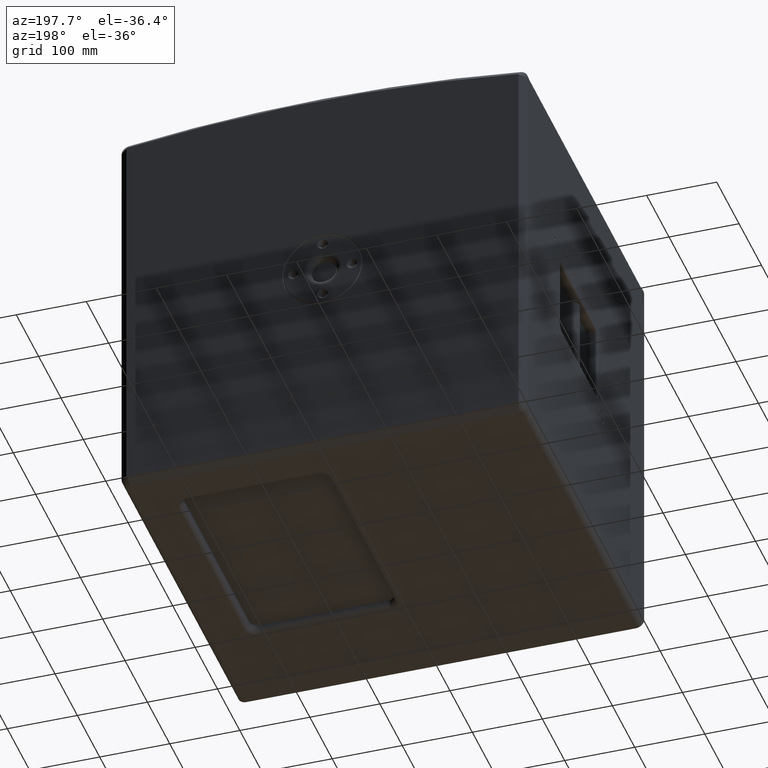
[diagram: clean part render]
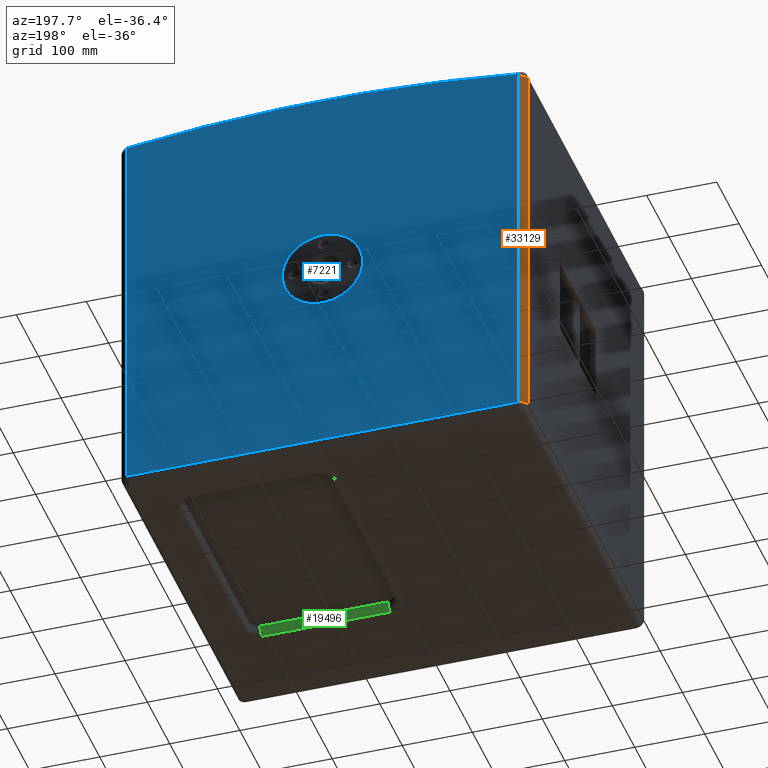
[diagram: same view with three faces highlighted in distinct colors, each labeled with its STEP entity id]
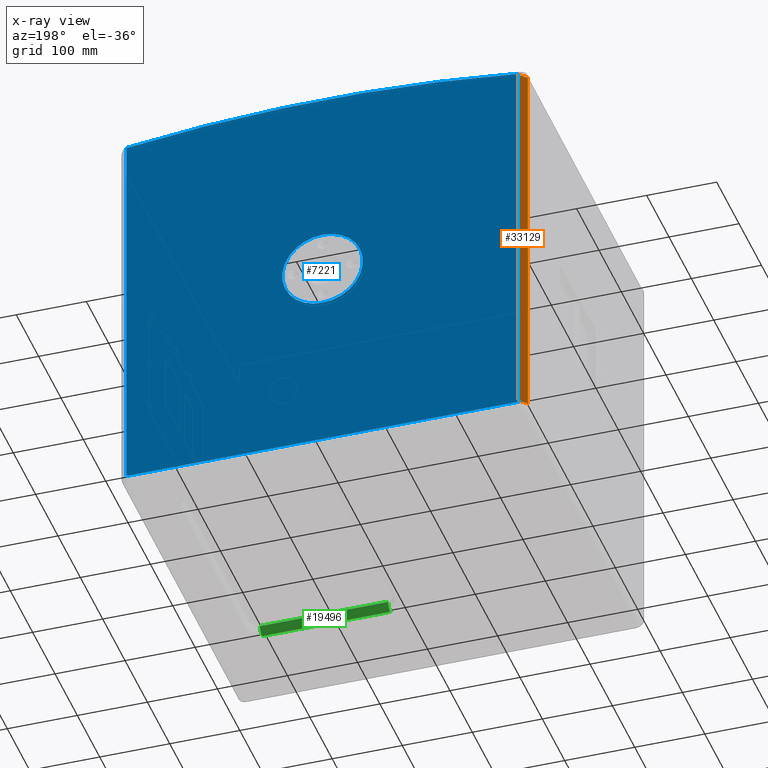
[diagram: x-ray of the same camera — body ghosted, the three highlighted faces saturated]
A machine part, auxiliary view with three faces highlighted in distinct colors.
The next image is the same camera in x-ray (body ghosted, the three faces saturated) — at least one of them is partly hidden behind the body in this view.
Their STEP definitions:

[orange] entity #33129 — the highlighted planar face has unit normal (0.7071, -0.7071, 0).
#368 = DIRECTION ( 'NONE',  ( 0.7071067811865495711, -0.7071067811865455743, 0.0000000000000000000 ) ) ;
#1529 = VERTEX_POINT ( 'NONE', #2086 ) ;
#2086 = CARTESIAN_POINT ( 'NONE',  ( -290.0000000000000000, 260.0000000000001137, 264.9646601001412023 ) ) ;
#2307 = ORIENTED_EDGE ( 'NONE', *, *, #12323, .F. ) ;
#2890 = ORIENTED_EDGE ( 'NONE', *, *, #34410, .F. ) ;
#4826 = DIRECTION ( 'NONE',  ( 0.0000000000000000000, 0.0000000000000000000, -1.000000000000000000 ) ) ;
#5221 = CARTESIAN_POINT ( 'NONE',  ( -280.0000000000001137, 270.0000000000000000, 297.5000000000000568 ) ) ;
#5461 = LINE ( 'NONE', #24528, #11710 ) ;
#5777 = LINE ( 'NONE', #18674, #21183 ) ;
#5852 = DIRECTION ( 'NONE',  ( 0.0000000000000000000, 0.0000000000000000000, 1.000000000000000000 ) ) ;
#5937 = VERTEX_POINT ( 'NONE', #29729 ) ;
#9651 = VERTEX_POINT ( 'NONE', #31165 ) ;
#9914 = FACE_OUTER_BOUND ( 'NONE', #34334, .T. ) ;
#9998 = VECTOR ( 'NONE', #5852, 1000.000000000000000 ) ;
#11710 = VECTOR ( 'NONE', #4826, 1000.000000000000000 ) ;
#11930 = DIRECTION ( 'NONE',  ( 0.7071067811865514585, 0.7071067811865435759, 0.0000000000000000000 ) ) ;
#12323 = EDGE_CURVE ( 'NONE', #9651, #5937, #13853, .T. ) ;
#13853 = LINE ( 'NONE', #20596, #29370 ) ;
#17438 = DIRECTION ( 'NONE',  ( 0.7071067811865455743, 0.7071067811865495711, 0.0000000000000000000 ) ) ;
#17463 = EDGE_CURVE ( 'NONE', #1529, #9651, #5461, .T. ) ;
#18674 = CARTESIAN_POINT ( 'NONE',  ( -289.9999999999999432, 260.0000000000002274, 264.9646601001412023 ) ) ;
#20244 = PLANE ( 'NONE',  #40561 ) ;
#20596 = CARTESIAN_POINT ( 'NONE',  ( -290.0000000000000000, 260.0000000000001137, -285.4999999999999432 ) ) ;
#21056 = LINE ( 'NONE', #5221, #9998 ) ;
#21183 = VECTOR ( 'NONE', #11930, 1000.000000000000000 ) ;
#23479 = DIRECTION ( 'NONE',  ( 0.0000000000000000000, 0.0000000000000000000, -1.000000000000000000 ) ) ;
#24528 = CARTESIAN_POINT ( 'NONE',  ( -290.0000000000000000, 260.0000000000001137, 297.5000000000000568 ) ) ;
#29370 = VECTOR ( 'NONE', #17438, 1000.000000000000114 ) ;
#29401 = CARTESIAN_POINT ( 'NONE',  ( -290.0000000000000000, 260.0000000000001137, 297.5000000000000568 ) ) ;
#29729 = CARTESIAN_POINT ( 'NONE',  ( -280.0000000000000568, 270.0000000000000000, -285.4999999999999432 ) ) ;
#31165 = CARTESIAN_POINT ( 'NONE',  ( -290.0000000000000000, 260.0000000000001137, -285.4999999999999432 ) ) ;
#33129 = ADVANCED_FACE ( 'NONE', ( #9914 ), #20244, .F. ) ;
#34222 = VERTEX_POINT ( 'NONE', #37327 ) ;
#34334 = EDGE_LOOP ( 'NONE', ( #36476, #2890, #2307, #35015 ) ) ;
#34410 = EDGE_CURVE ( 'NONE', #5937, #34222, #21056, .T. ) ;
#35015 = ORIENTED_EDGE ( 'NONE', *, *, #17463, .F. ) ;
#36476 = ORIENTED_EDGE ( 'NONE', *, *, #38411, .T. ) ;
#37327 = CARTESIAN_POINT ( 'NONE',  ( -280.0000000000001137, 270.0000000000000000, 264.9646601001412023 ) ) ;
#38411 = EDGE_CURVE ( 'NONE', #1529, #34222, #5777, .T. ) ;
#40561 = AXIS2_PLACEMENT_3D ( 'NONE', #29401, #368, #23479 ) ;

[blue] entity #7221 — the highlighted planar face has unit normal (0, -1, 0).
#396 = EDGE_CURVE ( 'NONE', #23469, #31254, #1039, .T. ) ;
#1039 = CIRCLE ( 'NONE', #30148, 57.50000000000000000 ) ;
#1063 = CARTESIAN_POINT ( 'NONE',  ( -277.9999999999999432, 270.0000000000000000, -287.5000000000000568 ) ) ;
#1485 = AXIS2_PLACEMENT_3D ( 'NONE', #21327, #18372, #31553 ) ;
#1579 = ORIENTED_EDGE ( 'NONE', *, *, #33606, .T. ) ;
#1696 = ORIENTED_EDGE ( 'NONE', *, *, #22549, .T. ) ;
#2448 = LINE ( 'NONE', #32256, #12137 ) ;
#2848 = VERTEX_POINT ( 'NONE', #36785 ) ;
#2894 = AXIS2_PLACEMENT_3D ( 'NONE', #8121, #5363, #4732 ) ;
#3872 = CARTESIAN_POINT ( 'NONE',  ( 277.9999999999998863, 270.0000000000000000, -287.5000000000000568 ) ) ;
#4698 = VERTEX_POINT ( 'NONE', #3872 ) ;
#4732 = DIRECTION ( 'NONE',  ( 0.0000000000000000000, 0.0000000000000000000, -1.000000000000000000 ) ) ;
#5035 = VECTOR ( 'NONE', #27881, 1000.000000000000000 ) ;
#5221 = CARTESIAN_POINT ( 'NONE',  ( -280.0000000000001137, 270.0000000000000000, 297.5000000000000568 ) ) ;
#5363 = DIRECTION ( 'NONE',  ( -0.0000000000000000000, 1.000000000000000000, -0.0000000000000000000 ) ) ;
#5802 = CARTESIAN_POINT ( 'NONE',  ( 7.041719095097280485E-15, 270.0000000000000000, -57.50000000000000000 ) ) ;
#5852 = DIRECTION ( 'NONE',  ( 0.0000000000000000000, 0.0000000000000000000, 1.000000000000000000 ) ) ;
#5937 = VERTEX_POINT ( 'NONE', #29729 ) ;
#6265 = EDGE_CURVE ( 'NONE', #31254, #23469, #8064, .T. ) ;
#6439 = DIRECTION ( 'NONE',  ( 0.0000000000000000000, -1.000000000000000000, 0.0000000000000000000 ) ) ;
#6559 = ORIENTED_EDGE ( 'NONE', *, *, #40883, .T. ) ;
#6984 = DIRECTION ( 'NONE',  ( 0.0000000000000000000, 1.000000000000000000, 0.0000000000000000000 ) ) ;
#7059 = VERTEX_POINT ( 'NONE', #15447 ) ;
#7221 = ADVANCED_FACE ( 'NONE', ( #13192, #25510 ), #16342, .F. ) ;
#7317 = DIRECTION ( 'NONE',  ( 0.0000000000000000000, 0.0000000000000000000, -1.000000000000000000 ) ) ;
#7493 = CARTESIAN_POINT ( 'NONE',  ( 280.0000000000000000, 270.0000000000000000, 264.9646601001412023 ) ) ;
#7583 = CARTESIAN_POINT ( 'NONE',  ( 1.109335647967047851E-31, 270.0000000000000000, 2.361151006844933674E-17 ) ) ;
#8064 = CIRCLE ( 'NONE', #31775, 57.50000000000000000 ) ;
#8121 = CARTESIAN_POINT ( 'NONE',  ( 277.9999999999998863, 270.0000000000000000, 264.9646601001412023 ) ) ;
#8771 = CARTESIAN_POINT ( 'NONE',  ( -277.9999999999999432, 270.0000000000000000, -285.4999999999999432 ) ) ;
#9998 = VECTOR ( 'NONE', #5852, 1000.000000000000000 ) ;
#10012 = ORIENTED_EDGE ( 'NONE', *, *, #6265, .F. ) ;
#10363 = DIRECTION ( 'NONE',  ( 0.0000000000000000000, 0.0000000000000000000, 1.000000000000000000 ) ) ;
#12137 = VECTOR ( 'NONE', #41102, 1000.000000000000000 ) ;
#13192 = FACE_BOUND ( 'NONE', #19281, .T. ) ;
#13373 = ORIENTED_EDGE ( 'NONE', *, *, #34410, .T. ) ;
#15331 = DIRECTION ( 'NONE',  ( -0.0000000000000000000, 1.000000000000000000, -0.0000000000000000000 ) ) ;
#15447 = CARTESIAN_POINT ( 'NONE',  ( 278.2541133455208069, 270.0000000000000000, 266.9484510184652777 ) ) ;
#16342 = PLANE ( 'NONE',  #41464 ) ;
#16979 = CIRCLE ( 'NONE', #22385, 2.000000000000112799 ) ;
#17084 = DIRECTION ( 'NONE',  ( 0.0000000000000000000, 0.0000000000000000000, -1.000000000000000000 ) ) ;
#17254 = ORIENTED_EDGE ( 'NONE', *, *, #396, .F. ) ;
#18372 = DIRECTION ( 'NONE',  ( -0.0000000000000000000, 1.000000000000000000, -0.0000000000000000000 ) ) ;
#19281 = EDGE_LOOP ( 'NONE', ( #17254, #10012 ) ) ;
#19364 = CARTESIAN_POINT ( 'NONE',  ( -277.9999999999998863, 270.0000000000000000, 264.9646601001412023 ) ) ;
#20465 = DIRECTION ( 'NONE',  ( 0.0000000000000000000, 1.000000000000000000, 0.0000000000000000000 ) ) ;
#21056 = LINE ( 'NONE', #5221, #9998 ) ;
#21191 = CIRCLE ( 'NONE', #35470, 2.000000000000112799 ) ;
#21327 = CARTESIAN_POINT ( 'NONE',  ( -2.775557561562891351E-14, 270.0000000000000000, -1905.302604547234296 ) ) ;
#21516 = DIRECTION ( 'NONE',  ( 0.0000000000000000000, -0.0000000000000000000, -1.000000000000000000 ) ) ;
#21713 = CARTESIAN_POINT ( 'NONE',  ( 280.0000000000000000, 270.0000000000000000, 297.5000000000000568 ) ) ;
#21803 = EDGE_CURVE ( 'NONE', #2848, #7059, #31282, .T. ) ;
#22154 = ORIENTED_EDGE ( 'NONE', *, *, #21803, .T. ) ;
#22385 = AXIS2_PLACEMENT_3D ( 'NONE', #33451, #27485, #17084 ) ;
#22396 = VERTEX_POINT ( 'NONE', #7493 ) ;
#22479 = CARTESIAN_POINT ( 'NONE',  ( 1.109335647967047851E-31, 270.0000000000000000, 57.50000000000000000 ) ) ;
#22549 = EDGE_CURVE ( 'NONE', #7059, #22396, #34062, .T. ) ;
#22893 = ORIENTED_EDGE ( 'NONE', *, *, #33506, .T. ) ;
#23182 = EDGE_LOOP ( 'NONE', ( #34270, #39821, #1579, #6559, #13373, #22893, #22154, #1696 ) ) ;
#23469 = VERTEX_POINT ( 'NONE', #22479 ) ;
#25510 = FACE_OUTER_BOUND ( 'NONE', #23182, .T. ) ;
#25709 = CARTESIAN_POINT ( 'NONE',  ( 289.9999999999999432, 270.0000000000000000, 297.5000000000000568 ) ) ;
#27485 = DIRECTION ( 'NONE',  ( -0.0000000000000000000, 1.000000000000000000, -0.0000000000000000000 ) ) ;
#27881 = DIRECTION ( 'NONE',  ( 0.0000000000000000000, 0.0000000000000000000, -1.000000000000000000 ) ) ;
#28574 = EDGE_CURVE ( 'NONE', #37502, #4698, #16979, .T. ) ;
#29729 = CARTESIAN_POINT ( 'NONE',  ( -280.0000000000000568, 270.0000000000000000, -285.4999999999999432 ) ) ;
#29868 = EDGE_CURVE ( 'NONE', #22396, #37502, #37712, .T. ) ;
#30148 = AXIS2_PLACEMENT_3D ( 'NONE', #39496, #6984, #10363 ) ;
#31099 = AXIS2_PLACEMENT_3D ( 'NONE', #19364, #36208, #7317 ) ;
#31254 = VERTEX_POINT ( 'NONE', #5802 ) ;
#31275 = DIRECTION ( 'NONE',  ( 0.0000000000000000000, 0.0000000000000000000, -1.000000000000000000 ) ) ;
#31282 = CIRCLE ( 'NONE', #1485, 2189.999999999999545 ) ;
#31553 = DIRECTION ( 'NONE',  ( 5.329070518200752183E-15, 0.0000000000000000000, -1.000000000000000000 ) ) ;
#31775 = AXIS2_PLACEMENT_3D ( 'NONE', #7583, #20465, #33471 ) ;
#32256 = CARTESIAN_POINT ( 'NONE',  ( 289.9999999999999432, 270.0000000000000000, -287.5000000000000568 ) ) ;
#32933 = VERTEX_POINT ( 'NONE', #1063 ) ;
#33451 = CARTESIAN_POINT ( 'NONE',  ( 277.9999999999998863, 270.0000000000000000, -285.4999999999999432 ) ) ;
#33471 = DIRECTION ( 'NONE',  ( 0.0000000000000000000, 0.0000000000000000000, 1.000000000000000000 ) ) ;
#33506 = EDGE_CURVE ( 'NONE', #34222, #2848, #39950, .T. ) ;
#33606 = EDGE_CURVE ( 'NONE', #4698, #32933, #2448, .T. ) ;
#34062 = CIRCLE ( 'NONE', #2894, 2.000000000000112799 ) ;
#34222 = VERTEX_POINT ( 'NONE', #37327 ) ;
#34270 = ORIENTED_EDGE ( 'NONE', *, *, #29868, .T. ) ;
#34410 = EDGE_CURVE ( 'NONE', #5937, #34222, #21056, .T. ) ;
#34904 = CARTESIAN_POINT ( 'NONE',  ( 280.0000000000000000, 270.0000000000000000, -285.4999999999999432 ) ) ;
#35470 = AXIS2_PLACEMENT_3D ( 'NONE', #8771, #15331, #31275 ) ;
#36208 = DIRECTION ( 'NONE',  ( -0.0000000000000000000, 1.000000000000000000, -0.0000000000000000000 ) ) ;
#36785 = CARTESIAN_POINT ( 'NONE',  ( -278.2541133455210343, 270.0000000000000000, 266.9484510184661303 ) ) ;
#37327 = CARTESIAN_POINT ( 'NONE',  ( -280.0000000000001137, 270.0000000000000000, 264.9646601001412023 ) ) ;
#37502 = VERTEX_POINT ( 'NONE', #34904 ) ;
#37712 = LINE ( 'NONE', #21713, #5035 ) ;
#39496 = CARTESIAN_POINT ( 'NONE',  ( 1.109335647967047851E-31, 270.0000000000000000, 2.361151006844933674E-17 ) ) ;
#39821 = ORIENTED_EDGE ( 'NONE', *, *, #28574, .T. ) ;
#39950 = CIRCLE ( 'NONE', #31099, 2.000000000000112799 ) ;
#40883 = EDGE_CURVE ( 'NONE', #32933, #5937, #21191, .T. ) ;
#41102 = DIRECTION ( 'NONE',  ( -1.000000000000000000, 0.0000000000000000000, 0.0000000000000000000 ) ) ;
#41464 = AXIS2_PLACEMENT_3D ( 'NONE', #25709, #6439, #21516 ) ;

[green] entity #19496 — the highlighted cylindrical surface (edge-blend (fillet) strip) has radius 10 mm, axis along (-1, -0, 0).
#20 = EDGE_CURVE ( 'NONE', #3034, #26559, #26048, .T. ) ;
#763 = CARTESIAN_POINT ( 'NONE',  ( 211.5000000000000568, -112.7499999999999716, -287.4999999999999432 ) ) ;
#3034 = VERTEX_POINT ( 'NONE', #22879 ) ;
#3462 = EDGE_LOOP ( 'NONE', ( #26012, #39428, #40506, #5992 ) ) ;
#3662 = CARTESIAN_POINT ( 'NONE',  ( 28.49999999999996092, -122.7500000000000284, -287.4999999999999432 ) ) ;
#5471 = VERTEX_POINT ( 'NONE', #38561 ) ;
#5776 = AXIS2_PLACEMENT_3D ( 'NONE', #5830, #12383, #30871 ) ;
#5830 = CARTESIAN_POINT ( 'NONE',  ( 211.5000000000000568, -122.7499999999999716, -287.4999999999999432 ) ) ;
#5992 = ORIENTED_EDGE ( 'NONE', *, *, #20666, .F. ) ;
#10113 = EDGE_CURVE ( 'NONE', #33146, #5471, #31948, .T. ) ;
#10523 = LINE ( 'NONE', #763, #27072 ) ;
#10869 = CARTESIAN_POINT ( 'NONE',  ( 2.792620415424956935E-14, -122.7500000000000142, -297.4999999999999432 ) ) ;
#12383 = DIRECTION ( 'NONE',  ( -1.000000000000000000, 0.0000000000000000000, 0.0000000000000000000 ) ) ;
#13193 = DIRECTION ( 'NONE',  ( 1.387778780781444492E-15, 0.0000000000000000000, 1.000000000000000000 ) ) ;
#14841 = DIRECTION ( 'NONE',  ( 0.0000000000000000000, -1.000000000000000000, 0.0000000000000000000 ) ) ;
#18019 = CYLINDRICAL_SURFACE ( 'NONE', #29402, 10.00000000000000888 ) ;
#18436 = FACE_OUTER_BOUND ( 'NONE', #3462, .T. ) ;
#18546 = EDGE_CURVE ( 'NONE', #5471, #26559, #39348, .T. ) ;
#19496 = ADVANCED_FACE ( 'NONE', ( #18436 ), #18019, .T. ) ;
#20134 = DIRECTION ( 'NONE',  ( 1.000000000000000000, 2.275047181608926165E-16, -0.0000000000000000000 ) ) ;
#20666 = EDGE_CURVE ( 'NONE', #3034, #33146, #10523, .T. ) ;
#22879 = CARTESIAN_POINT ( 'NONE',  ( 211.5000000000000568, -112.7499999999999574, -287.4999999999999432 ) ) ;
#25281 = VECTOR ( 'NONE', #20134, 1000.000000000000000 ) ;
#26012 = ORIENTED_EDGE ( 'NONE', *, *, #20, .T. ) ;
#26048 = CIRCLE ( 'NONE', #5776, 10.00000000000000888 ) ;
#26426 = CARTESIAN_POINT ( 'NONE',  ( 28.49999999999995737, -112.7500000000000142, -287.4999999999999432 ) ) ;
#26507 = CARTESIAN_POINT ( 'NONE',  ( 211.5000000000000568, -122.7499999999999716, -297.4999999999999432 ) ) ;
#26559 = VERTEX_POINT ( 'NONE', #26507 ) ;
#27072 = VECTOR ( 'NONE', #33865, 1000.000000000000000 ) ;
#28705 = DIRECTION ( 'NONE',  ( -1.000000000000000000, -3.469446951953610738E-16, 1.387778780781443901E-15 ) ) ;
#29402 = AXIS2_PLACEMENT_3D ( 'NONE', #30988, #31407, #14841 ) ;
#30871 = DIRECTION ( 'NONE',  ( 0.0000000000000000000, 0.0000000000000000000, 1.000000000000000000 ) ) ;
#30988 = CARTESIAN_POINT ( 'NONE',  ( 211.5000000000000568, -122.7499999999999716, -287.4999999999999432 ) ) ;
#31407 = DIRECTION ( 'NONE',  ( -1.000000000000000000, -2.275047181608926165E-16, 0.0000000000000000000 ) ) ;
#31948 = CIRCLE ( 'NONE', #38770, 10.00000000000000888 ) ;
#33146 = VERTEX_POINT ( 'NONE', #26426 ) ;
#33865 = DIRECTION ( 'NONE',  ( -1.000000000000000000, -2.275047181608926165E-16, 0.0000000000000000000 ) ) ;
#38561 = CARTESIAN_POINT ( 'NONE',  ( 28.49999999999994671, -122.7500000000000142, -297.4999999999999432 ) ) ;
#38770 = AXIS2_PLACEMENT_3D ( 'NONE', #3662, #28705, #13193 ) ;
#39348 = LINE ( 'NONE', #10869, #25281 ) ;
#39428 = ORIENTED_EDGE ( 'NONE', *, *, #18546, .F. ) ;
#40506 = ORIENTED_EDGE ( 'NONE', *, *, #10113, .F. ) ;